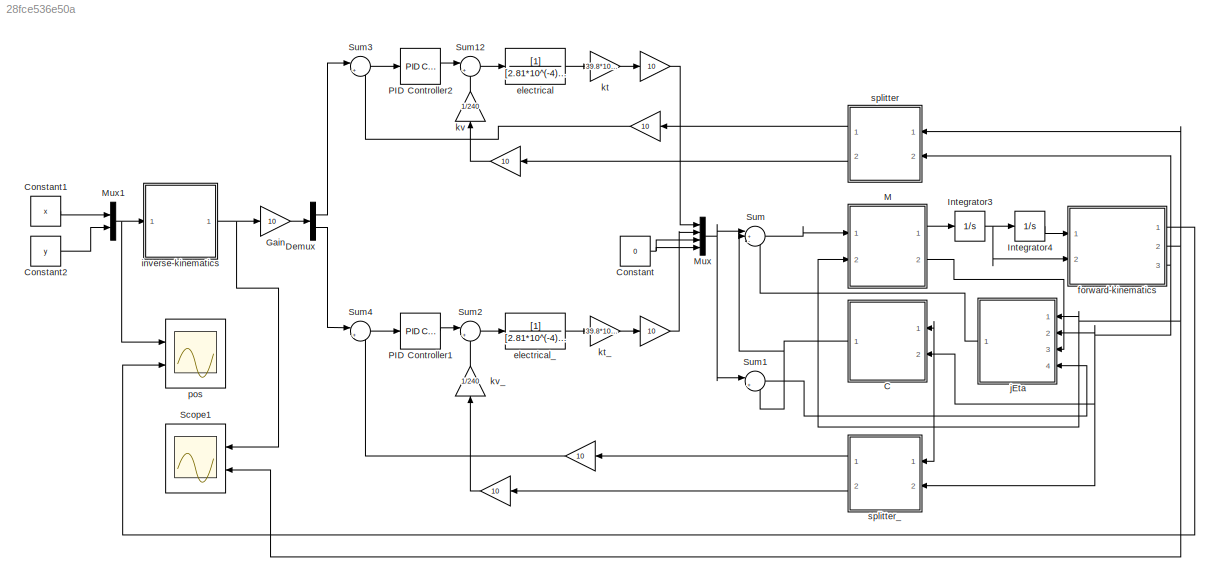
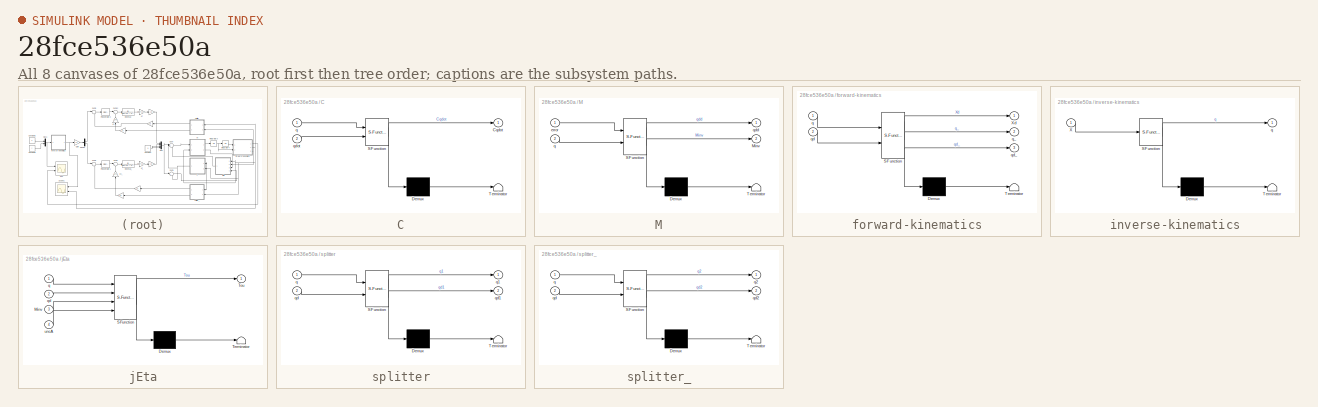
[diagram: thumbnail index - all 8 canvases of the model, root first then tree order]
MODEL slx_28fce536e50a
KIND model
CONFIG AbsTol = auto
CONFIG EnableMultiTasking = off
CONFIG FixedStep = auto
CONFIG MaxStep = auto
CONFIG MinStep = auto
CONFIG RelTol = 1e-3
CONFIG SampleTimeConstraint = Unconstrained
CONFIG Solver = VariableStepAuto
CONFIG SolverName = VariableStepAuto
CONFIG StartTime = 0.0
CONFIG StopTime = 10
BLOCK [Gain]  
  Gain = 10
  OutDataTypeStr = Inherit: Inherit via internal rule
  ParamDataTypeStr = Inherit: Inherit via internal rule
  SaturateOnIntegerOverflow = off
BLOCK [Gain]   
  Gain = 10
  OutDataTypeStr = Inherit: Inherit via internal rule
  ParamDataTypeStr = Inherit: Inherit via internal rule
  SaturateOnIntegerOverflow = off
BLOCK [Gain]    
  Gain = 10
  OutDataTypeStr = Inherit: Inherit via internal rule
  ParamDataTypeStr = Inherit: Inherit via internal rule
  SaturateOnIntegerOverflow = off
BLOCK [Gain]     
  Gain = 10
  OutDataTypeStr = Inherit: Inherit via internal rule
  ParamDataTypeStr = Inherit: Inherit via internal rule
  SaturateOnIntegerOverflow = off
BLOCK [Gain]          
  Gain = 10
  OutDataTypeStr = Inherit: Inherit via internal rule
  ParamDataTypeStr = Inherit: Inherit via internal rule
  SaturateOnIntegerOverflow = off
BLOCK [Gain]                   
  Gain = 10
  OutDataTypeStr = Inherit: Inherit via internal rule
  ParamDataTypeStr = Inherit: Inherit via internal rule
  SaturateOnIntegerOverflow = off
BLOCK [SubSystem] C
  ErrorFcn = Stateflow.Translate.translate
  PermitHierarchicalResolution = ExplicitOnly
  Ports = [2, 1]
  RequestExecContextInheritance = off
  SFBlockType = MATLAB Function
  TreatAsAtomicUnit = on
BLOCK [Demux] C/ Demux 
  Outputs = 1
  Ports = [1, 1]
BLOCK [S-Function] C/ SFunction 
  EnableBusSupport = on
  FunctionName = sf_sfun
  PortCounts = [2 2]
  Ports = [2, 2]
  SFcnIsStateOwnerBlock = off
  SFunctionDeploymentMode = off
  Tag = Stateflow S-Function CartesianPosControl5bar 3
BLOCK [Terminator] C/ Terminator 
BLOCK [Outport] C/Cqdot
  IconDisplay = Port number
BLOCK [Inport] C/q
  IconDisplay = Port number
BLOCK [Inport] C/qdot
  IconDisplay = Port number
  Port = 2
BLOCK [Constant] Constant
  Value = 0
BLOCK [Constant] Constant1
  Value = x
BLOCK [Constant] Constant2
  Value = y
BLOCK [Demux] Demux
  DisplayOption = bar
  Outputs = 2
  Ports = [1, 2]
BLOCK [Gain] Gain
  Gain = 10
  OutDataTypeStr = Inherit: Inherit via internal rule
  ParamDataTypeStr = Inherit: Inherit via internal rule
  SaturateOnIntegerOverflow = off
BLOCK [Integrator] Integrator3
  InitialCondition = [0 0 0 0]'
  Ports = [1, 1]
BLOCK [Integrator] Integrator4
  InitialCondition = [0 0 0 0]'
  Ports = [1, 1]
BLOCK [SubSystem] M
  ErrorFcn = Stateflow.Translate.translate
  PermitHierarchicalResolution = ExplicitOnly
  Ports = [2, 2]
  RequestExecContextInheritance = off
  SFBlockType = MATLAB Function
  TreatAsAtomicUnit = on
BLOCK [Demux] M/ Demux 
  Outputs = 1
  Ports = [1, 1]
BLOCK [S-Function] M/ SFunction 
  EnableBusSupport = on
  FunctionName = sf_sfun
  PortCounts = [2 3]
  Ports = [2, 3]
  SFcnIsStateOwnerBlock = off
  SFunctionDeploymentMode = off
  Tag = Stateflow S-Function CartesianPosControl5bar 6
BLOCK [Terminator] M/ Terminator 
BLOCK [Outport] M/Minv
  IconDisplay = Port number
  Port = 2
BLOCK [Inport] M/error
  IconDisplay = Port number
BLOCK [Inport] M/q
  IconDisplay = Port number
  Port = 2
BLOCK [Outport] M/qdd
  IconDisplay = Port number
BLOCK [Mux] Mux
  DisplayOption = bar
  Ports = [4, 1]
BLOCK [Mux] Mux1
  DisplayOption = bar
  Inputs = 2
  Ports = [2, 1]
BLOCK [Reference] PID Controller1  REF=simulink/Continuous/PID Controller
  Ports = [1, 1]
  SourceBlock = simulink/Continuous/PID Controller
  SourceProductBaseCode = SL
  SourceProductName = Simulink
  SourceType = PID 1dof
BLOCK [Reference] PID Controller2  REF=simulink/Continuous/PID Controller
  Ports = [1, 1]
  SourceBlock = simulink/Continuous/PID Controller
  SourceProductBaseCode = SL
  SourceProductName = Simulink
  SourceType = PID 1dof
BLOCK [Scope] Scope1
  Floating = off
  NumInputPorts = 2
  Ports = [2]
  ScopeSpecificationString = Simulink.scopes.TimeScopeBlockCfg('CurrentConfiguration', extmgr.ConfigurationSet(extmgr.Configuration('Core','General UI',true),extmgr.Configuration('Core','Source UI',true),extmgr.Configuration('Sources','WiredSimulink',true),extmgr.Configuration('Visuals','Time Domain',true,'SerializedDisplays',{struct('MinYLimReal','-0.11983','MaxYLimReal','1.68839','YLabelReal','','MinYLimMag','0.00000','MaxY...<+1652ch>
BLOCK [Sum] Sum
  IconShape = round
  InputSameDT = off
  Inputs = |+-+
  OutDataTypeStr = Inherit: Inherit via internal rule
  Ports = [3, 1]
  SaturateOnIntegerOverflow = off
BLOCK [Sum] Sum1
  IconShape = round
  InputSameDT = off
  Inputs = |+-
  OutDataTypeStr = Inherit: Inherit via internal rule
  Ports = [2, 1]
  SaturateOnIntegerOverflow = off
BLOCK [Sum] Sum12
  IconShape = round
  InputSameDT = off
  Inputs = |+-
  OutDataTypeStr = Inherit: Inherit via internal rule
  Ports = [2, 1]
  SaturateOnIntegerOverflow = off
BLOCK [Sum] Sum2
  IconShape = round
  InputSameDT = off
  Inputs = |+-
  OutDataTypeStr = Inherit: Inherit via internal rule
  Ports = [2, 1]
  SaturateOnIntegerOverflow = off
BLOCK [Sum] Sum3
  IconShape = round
  InputSameDT = off
  Inputs = |+-
  OutDataTypeStr = Inherit: Inherit via internal rule
  Ports = [2, 1]
  SaturateOnIntegerOverflow = off
BLOCK [Sum] Sum4
  IconShape = round
  InputSameDT = off
  Inputs = |+-
  OutDataTypeStr = Inherit: Inherit via internal rule
  Ports = [2, 1]
  SaturateOnIntegerOverflow = off
BLOCK [TransferFcn] electrical
  Denominator = [2.81*10^(-4) 1.45]
BLOCK [TransferFcn] electrical_
  Denominator = [2.81*10^(-4) 1.45]
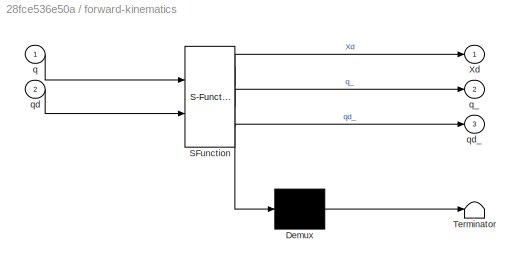
BLOCK [SubSystem] forward-kinematics
  ErrorFcn = Stateflow.Translate.translate
  PermitHierarchicalResolution = ExplicitOnly
  Ports = [2, 3]
  RequestExecContextInheritance = off
  SFBlockType = MATLAB Function
  TreatAsAtomicUnit = on
BLOCK [Demux] forward-kinematics/ Demux 
  Outputs = 1
  Ports = [1, 1]
BLOCK [S-Function] forward-kinematics/ SFunction 
  EnableBusSupport = on
  FunctionName = sf_sfun
  PortCounts = [2 4]
  Ports = [2, 4]
  SFcnIsStateOwnerBlock = off
  SFunctionDeploymentMode = off
  Tag = Stateflow S-Function CartesianPosControl5bar 16
BLOCK [Terminator] forward-kinematics/ Terminator 
BLOCK [Outport] forward-kinematics/Xd
  IconDisplay = Port number
BLOCK [Inport] forward-kinematics/q
  IconDisplay = Port number
BLOCK [Outport] forward-kinematics/q_
  IconDisplay = Port number
  Port = 2
BLOCK [Inport] forward-kinematics/qd
  IconDisplay = Port number
  Port = 2
BLOCK [Outport] forward-kinematics/qd_
  IconDisplay = Port number
  Port = 3
BLOCK [SubSystem] inverse-kinematics
  ErrorFcn = Stateflow.Translate.translate
  PermitHierarchicalResolution = ExplicitOnly
  Ports = [1, 1]
  RequestExecContextInheritance = off
  SFBlockType = MATLAB Function
  TreatAsAtomicUnit = on
BLOCK [Demux] inverse-kinematics/ Demux 
  Outputs = 1
  Ports = [1, 1]
BLOCK [S-Function] inverse-kinematics/ SFunction 
  EnableBusSupport = on
  FunctionName = sf_sfun
  PortCounts = [1 2]
  Ports = [1, 2]
  SFcnIsStateOwnerBlock = off
  SFunctionDeploymentMode = off
  Tag = Stateflow S-Function CartesianPosControl5bar 2
BLOCK [Terminator] inverse-kinematics/ Terminator 
BLOCK [Inport] inverse-kinematics/X
  IconDisplay = Port number
BLOCK [Outport] inverse-kinematics/q
  IconDisplay = Port number
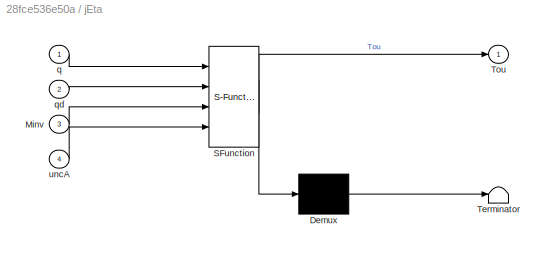
BLOCK [SubSystem] jEta
  ErrorFcn = Stateflow.Translate.translate
  PermitHierarchicalResolution = ExplicitOnly
  Ports = [4, 1]
  RequestExecContextInheritance = off
  SFBlockType = MATLAB Function
  TreatAsAtomicUnit = on
BLOCK [Demux] jEta/ Demux 
  Outputs = 1
  Ports = [1, 1]
BLOCK [S-Function] jEta/ SFunction 
  EnableBusSupport = on
  FunctionName = sf_sfun
  PortCounts = [4 2]
  Ports = [4, 2]
  SFcnIsStateOwnerBlock = off
  SFunctionDeploymentMode = off
  Tag = Stateflow S-Function CartesianPosControl5bar 5
BLOCK [Terminator] jEta/ Terminator 
BLOCK [Inport] jEta/Minv
  IconDisplay = Port number
  Port = 3
BLOCK [Outport] jEta/Tou
  IconDisplay = Port number
BLOCK [Inport] jEta/q
  IconDisplay = Port number
BLOCK [Inport] jEta/qd
  IconDisplay = Port number
  Port = 2
BLOCK [Inport] jEta/uncA
  IconDisplay = Port number
  Port = 4
BLOCK [Gain] kt
  Gain = 39.8*10^(-3)
  OutDataTypeStr = Inherit: Inherit via internal rule
  ParamDataTypeStr = Inherit: Inherit via internal rule
  SaturateOnIntegerOverflow = off
BLOCK [Gain] kt_
  Gain = 39.8*10^(-3)
  OutDataTypeStr = Inherit: Inherit via internal rule
  ParamDataTypeStr = Inherit: Inherit via internal rule
  SaturateOnIntegerOverflow = off
BLOCK [Gain] kv
  Gain = 1/240
  OutDataTypeStr = Inherit: Inherit via internal rule
  ParamDataTypeStr = Inherit: Inherit via internal rule
  SaturateOnIntegerOverflow = off
BLOCK [Gain] kv_
  Gain = 1/240
  OutDataTypeStr = Inherit: Inherit via internal rule
  ParamDataTypeStr = Inherit: Inherit via internal rule
  SaturateOnIntegerOverflow = off
BLOCK [Scope] pos
  Floating = off
  NumInputPorts = 2
  Ports = [2]
  ScopeSpecificationString = Simulink.scopes.TimeScopeBlockCfg('CurrentConfiguration', extmgr.ConfigurationSet(extmgr.Configuration('Core','General UI',true),extmgr.Configuration('Core','Source UI',true),extmgr.Configuration('Sources','WiredSimulink',true,'DataLoggingVariableName','ScopeData2'),extmgr.Configuration('Visuals','Time Domain',true,'SerializedDisplays',{struct('MinYLimReal','0.16824','MaxYLimReal','0.25076','YLabe...<+1476ch>
BLOCK [SubSystem] splitter
  ErrorFcn = Stateflow.Translate.translate
  PermitHierarchicalResolution = ExplicitOnly
  Ports = [2, 2]
  RequestExecContextInheritance = off
  SFBlockType = MATLAB Function
  TreatAsAtomicUnit = on
BLOCK [Demux] splitter/ Demux 
  Outputs = 1
  Ports = [1, 1]
BLOCK [S-Function] splitter/ SFunction 
  EnableBusSupport = on
  FunctionName = sf_sfun
  PortCounts = [2 3]
  Ports = [2, 3]
  SFcnIsStateOwnerBlock = off
  SFunctionDeploymentMode = off
  Tag = Stateflow S-Function CartesianPosControl5bar 1
BLOCK [Terminator] splitter/ Terminator 
BLOCK [Inport] splitter/q
  IconDisplay = Port number
BLOCK [Outport] splitter/q1
  IconDisplay = Port number
BLOCK [Inport] splitter/qd
  IconDisplay = Port number
  Port = 2
BLOCK [Outport] splitter/qd1
  IconDisplay = Port number
  Port = 2
BLOCK [SubSystem] splitter_
  ErrorFcn = Stateflow.Translate.translate
  PermitHierarchicalResolution = ExplicitOnly
  Ports = [2, 2]
  RequestExecContextInheritance = off
  SFBlockType = MATLAB Function
  TreatAsAtomicUnit = on
BLOCK [Demux] splitter_/ Demux 
  Outputs = 1
  Ports = [1, 1]
BLOCK [S-Function] splitter_/ SFunction 
  EnableBusSupport = on
  FunctionName = sf_sfun
  PortCounts = [2 3]
  Ports = [2, 3]
  SFcnIsStateOwnerBlock = off
  SFunctionDeploymentMode = off
  Tag = Stateflow S-Function CartesianPosControl5bar 4
BLOCK [Terminator] splitter_/ Terminator 
BLOCK [Inport] splitter_/q
  IconDisplay = Port number
BLOCK [Outport] splitter_/q2
  IconDisplay = Port number
BLOCK [Inport] splitter_/qd
  IconDisplay = Port number
  Port = 2
BLOCK [Outport] splitter_/qd2
  IconDisplay = Port number
  Port = 2
LINE                   :1 -> Mux:1
LINE          :1 -> Mux:2
LINE     :1 -> kv_:1
LINE    :1 -> Sum4:2
LINE   :1 -> kv:1
LINE  :1 -> Sum3:2
NET C:1 -> Sum1:2, Sum:2
LINE Constant1:1 -> Mux1:1
LINE Constant2:1 -> Mux1:2
NET Constant:1 -> Mux:3, Mux:4
LINE Demux:1 -> Sum3:1
LINE Demux:2 -> Sum4:1
LINE Gain:1 -> Demux:1
NET Integrator3:1 -> Integrator4:1, forward-kinematics:2
LINE Integrator4:1 -> forward-kinematics:1
LINE M:1 -> Integrator3:1
LINE M:2 -> jEta:3
NET Mux1:1 -> inverse-kinematics:1, pos:1
NET Mux:1 -> Sum1:1, Sum:1
LINE PID Controller1:1 -> Sum2:1
LINE PID Controller2:1 -> Sum12:1
LINE Sum12:1 -> electrical:1
LINE Sum1:1 -> jEta:4
LINE Sum2:1 -> electrical_:1
LINE Sum3:1 -> PID Controller2:1
LINE Sum4:1 -> PID Controller1:1
LINE Sum:1 -> M:1
LINE electrical:1 -> kt:1
LINE electrical_:1 -> kt_:1
LINE forward-kinematics:1 -> pos:2
NET forward-kinematics:2 -> C:1, M:2, Scope1:2, jEta:1, splitter:1, splitter_:1
NET forward-kinematics:3 -> C:2, jEta:2, splitter:2, splitter_:2
NET inverse-kinematics:1 -> Gain:1, Scope1:1
LINE jEta:1 -> Sum:3
LINE kt:1 ->                   :1
LINE kt_:1 ->          :1
LINE kv:1 -> Sum12:2
LINE kv_:1 -> Sum2:2
LINE splitter:1 ->  :1
LINE splitter:2 ->   :1
LINE splitter_:1 ->    :1
LINE splitter_:2 ->     :1
note: NET lines group one-source signal fan-out (src -> all destinations, sorted); 1:1 wires keep LINE
CHART splitter states=1 transitions=1
  STATE_LABEL 'eML_blk_kernel()'
  STATE_LABEL 'SCRIPT:\nfunction [q1, qd1] = fcn(q, qd)\nq1 = q(1);\nqd1 = qd(1);\n\n'
CHART inverse-kinematics states=1 transitions=1
  STATE_LABEL 'eML_blk_kernel()'
  STATE_LABEL 'SCRIPT:\nfunction q = fcn(X)\nl = 0.18;\nb = 0.155;\nx = X(1);\ny = X(2);\n\nm = sqrt(x^2 + y^2); %pa1\nn = sqrt((x-b)^2 + y^2); %pa2\n\nq21 = acos(m/(2*l));\nq22 = acos(x/m);\nq2 = q21 + q22;\n\nq11 = acos(n/(2*l));\nq12 = acos((x-b)/n);\nq1 = q12 - q11;\n\nq = [q1; q2];\n'
CHART C states=1 transitions=1
  STATE_LABEL 'eML_blk_kernel()'
  STATE_LABEL 'SCRIPT:\nfunction Cqdot  = fcn(q, qdot)\nq1 = q(1);\nq2 = q(2);\nq3 = q(3);\nq4 = q(4);\n\nC=[0.E-307,(-0.234804E-3).*cos(q1).*sin(q2),0.496696E-3.*sin(q1+(-1).*q3),cos(q1).*((-0.234804E-3).*sin(q1)+(-0.234804E-3).*sin(q2));0.234804E-3.*cos(q1).*sin(q2),0.E-307,0,0.234804E-3.*cos(q1).*sin(q2)+(-0.469609E-3).*cos(q2).*sin(q4);(-0.496696E-3).*sin(q1+(-1).*q3),0,0.E-307,0;cos(q1).*(0.234804E-3.*sin(q1)+0.23...<+186ch>'
CHART splitter_ states=1 transitions=1
  STATE_LABEL 'eML_blk_kernel()'
  STATE_LABEL 'SCRIPT:\nfunction [q2, qd2] = fcn(q, qd)\nq2 = q(2);\nqd2 = qd(2);\n\n'
CHART jEta states=1 transitions=1
  STATE_LABEL 'eML_blk_kernel()'
  STATE_LABEL "SCRIPT:\nfunction Tou  = fcn(q, qd, Minv, uncA)\nl = 0.18;\nq1 = q(1);\nq2 = q(2);\nq3 = q(3);\nq4 = q(4);\n\nJEta = l .* [sin(q1) -sin(q2) sin(q3) -sin(q4);\n                -cos(q1) cos(q2) -cos(q3) cos(q4)];\n   \nJdot = l .* [cos(q1) -cos(q2) cos(q3) -cos(q4)\n                sin(q1) -sin(q2) sin(q3) -sin(q4)];\n\nB = (JEta * Minv * uncA) + (Jdot * qd);\nA = inv(JEta * Minv * JEta');\nlambda = -1 * (A * B);\n\n...<+21ch>"
CHART M states=1 transitions=1
  STATE_LABEL 'eML_blk_kernel()'
  STATE_LABEL 'SCRIPT:\nfunction [qdd, Minv]  = fcn(error, q)\nl=0.18;\nq1 = q(1);\nq2 = q(2);\nq3 = q(3);\nq4 = q(4);\n\nm1=0.03285303;\nm2=0.02898819;\nm3=0.03066024;\nm4=0.02898819;\nI1=2.19e-006;\nI2=1.99e-006;\nI3=1.2e-006;\nI4=1.99e-006;\nJv1=[(-l/2)*sin(q1) 0 0 0; (l/2)*cos(q1) 0 0 0];\nJv2=[0 (-l/2)*sin(q2) 0 0; 0 (l/2)*cos(q2) 0 0];\nJv3=[-l*sin(q1) 0 (-l/2)*sin(q3) 0; l*cos(q1) 0 (l/2)*cos(q3) 0];\nJv4=[0 -l*sin(q2) 0 (-...<+446ch>'
CHART forward-kinematics states=1 transitions=1
  STATE_LABEL 'eML_blk_kernel()'
  STATE_LABEL "SCRIPT:\nfunction [Xd, q_, qd_]  = fcn(q, qd)\n\nq1 = q(1);\nq2 = q(2);\n\nl = 0.18;\nb = 0.155;\n\nxb = l*cos(q2);\nyb = l*sin(q2);\nxd = b + l*cos(q1);\nyd = l*sin(q1);\n\ndsquare = (xb - xd)^2 + (yb - yd)^2;\n\n%by Heron's formula\nk = 0.25 * sqrt(((2*l)^2 - dsquare) * (dsquare));\n\n%considering only the y-coordinate that is above the line joining the\n%centers of the corresponding two circles.\nx = (0.5 * (xb + x...<+483ch>"
